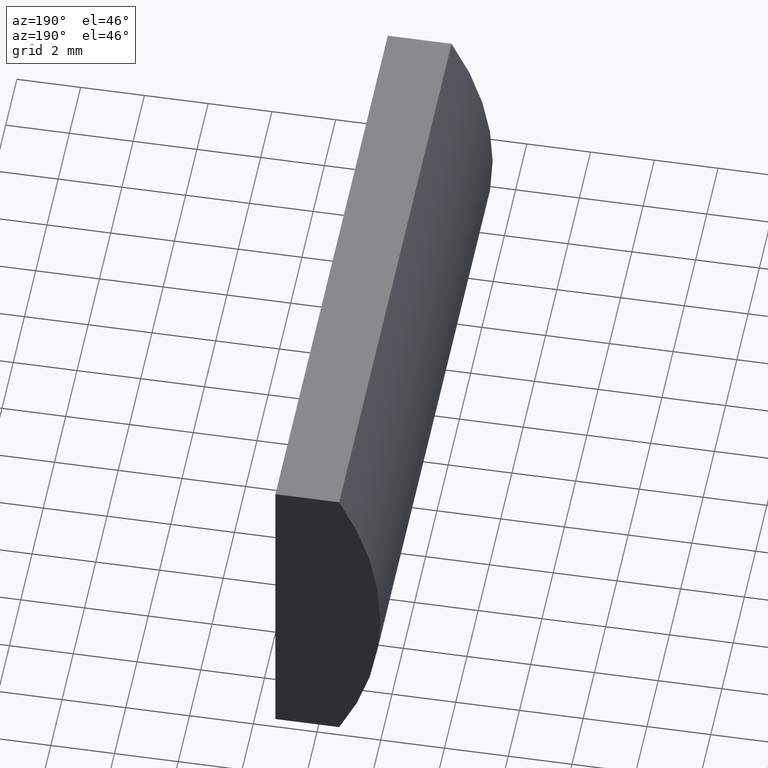
[diagram: clean part render]
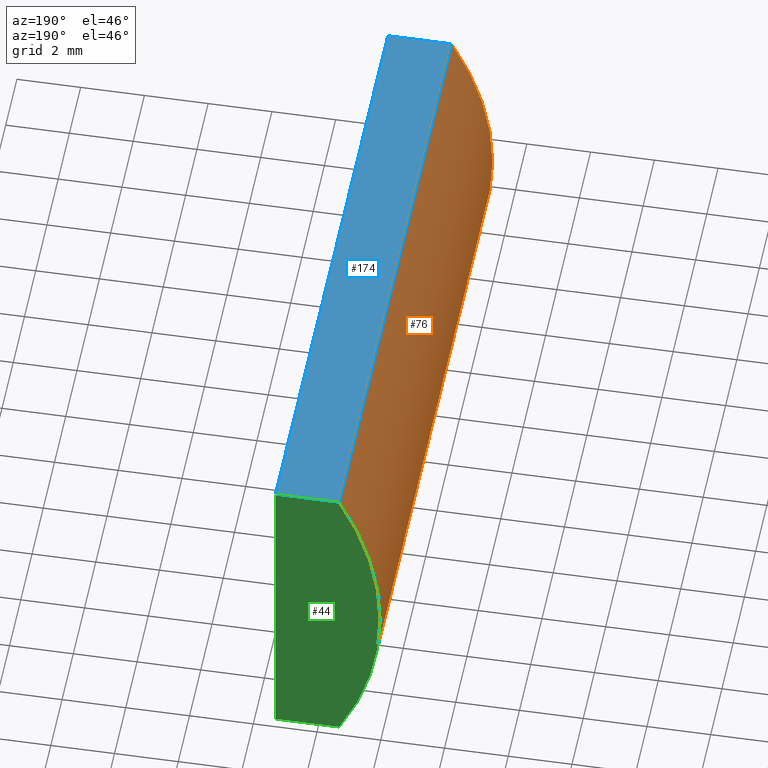
[diagram: same view with three faces highlighted in distinct colors, each labeled with its STEP entity id]
A machine part, auxiliary view with three faces highlighted in distinct colors.
Their STEP definitions:

[orange] entity #76 — the highlighted cylindrical surface (partial cylindrical patch) has radius 10.34 mm, axis along (-0, -1, -0).
#2 = FACE_OUTER_BOUND ( 'NONE', #109, .T. ) ;
#8 = VERTEX_POINT ( 'NONE', #71 ) ;
#13 = CARTESIAN_POINT ( 'NONE',  ( 4.355204334851265500, 0.0000000000000000000, 4.286263797015675000E-017 ) ) ;
#20 = CARTESIAN_POINT ( 'NONE',  ( -4.695519393116569500, 0.0000000000000000000, -5.000000000000000000 ) ) ;
#22 = VERTEX_POINT ( 'NONE', #65 ) ;
#38 = AXIS2_PLACEMENT_3D ( 'NONE', #13, #83, #178 ) ;
#40 = CARTESIAN_POINT ( 'NONE',  ( 4.355204334851265500, 20.00000000000000000, 4.286263797015675000E-017 ) ) ;
#52 = EDGE_CURVE ( 'NONE', #153, #8, #180, .T. ) ;
#55 = CIRCLE ( 'NONE', #38, 10.34000000000000000 ) ;
#65 = CARTESIAN_POINT ( 'NONE',  ( -4.695519393116569500, 20.00000000000000000, -5.000000000000000000 ) ) ;
#71 = CARTESIAN_POINT ( 'NONE',  ( -4.695519393116569500, 0.0000000000000000000, 5.000000000000000000 ) ) ;
#76 = ADVANCED_FACE ( 'NONE', ( #2 ), #185, .T. ) ;
#83 = DIRECTION ( 'NONE',  ( 0.0000000000000000000, 1.000000000000000000, 0.0000000000000000000 ) ) ;
#84 = ORIENTED_EDGE ( 'NONE', *, *, #115, .T. ) ;
#89 = ORIENTED_EDGE ( 'NONE', *, *, #135, .T. ) ;
#91 = CIRCLE ( 'NONE', #202, 10.34000000000000000 ) ;
#106 = VERTEX_POINT ( 'NONE', #20 ) ;
#107 = AXIS2_PLACEMENT_3D ( 'NONE', #40, #141, #126 ) ;
#109 = EDGE_LOOP ( 'NONE', ( #84, #176, #142, #89 ) ) ;
#113 = CARTESIAN_POINT ( 'NONE',  ( -4.695519393116569500, 20.00000000000000000, 5.000000000000000000 ) ) ;
#115 = EDGE_CURVE ( 'NONE', #106, #8, #55, .T. ) ;
#122 = DIRECTION ( 'NONE',  ( 0.0000000000000000000, 0.0000000000000000000, 1.000000000000000000 ) ) ;
#126 = DIRECTION ( 'NONE',  ( 0.0000000000000000000, 0.0000000000000000000, -1.000000000000000000 ) ) ;
#130 = CARTESIAN_POINT ( 'NONE',  ( -4.695519393116569500, 20.00000000000000000, 5.000000000000000000 ) ) ;
#135 = EDGE_CURVE ( 'NONE', #22, #106, #192, .T. ) ;
#136 = CARTESIAN_POINT ( 'NONE',  ( -4.695519393116569500, 20.00000000000000000, -5.000000000000000000 ) ) ;
#141 = DIRECTION ( 'NONE',  ( -0.0000000000000000000, -1.000000000000000000, -0.0000000000000000000 ) ) ;
#142 = ORIENTED_EDGE ( 'NONE', *, *, #147, .F. ) ;
#144 = CARTESIAN_POINT ( 'NONE',  ( 4.355204334851265500, 20.00000000000000000, 4.286263797015675000E-017 ) ) ;
#146 = DIRECTION ( 'NONE',  ( 0.0000000000000000000, 1.000000000000000000, 0.0000000000000000000 ) ) ;
#147 = EDGE_CURVE ( 'NONE', #22, #153, #91, .T. ) ;
#153 = VERTEX_POINT ( 'NONE', #130 ) ;
#161 = VECTOR ( 'NONE', #168, 1000.000000000000000 ) ;
#168 = DIRECTION ( 'NONE',  ( -0.0000000000000000000, -1.000000000000000000, -0.0000000000000000000 ) ) ;
#175 = VECTOR ( 'NONE', #183, 1000.000000000000000 ) ;
#176 = ORIENTED_EDGE ( 'NONE', *, *, #52, .F. ) ;
#178 = DIRECTION ( 'NONE',  ( 0.0000000000000000000, 0.0000000000000000000, 1.000000000000000000 ) ) ;
#180 = LINE ( 'NONE', #113, #161 ) ;
#183 = DIRECTION ( 'NONE',  ( -0.0000000000000000000, -1.000000000000000000, -0.0000000000000000000 ) ) ;
#185 = CYLINDRICAL_SURFACE ( 'NONE', #107, 10.34000000000000000 ) ;
#192 = LINE ( 'NONE', #136, #175 ) ;
#202 = AXIS2_PLACEMENT_3D ( 'NONE', #144, #146, #122 ) ;

[blue] entity #174 — the highlighted planar face has unit normal (0, 0, -1).
#8 = VERTEX_POINT ( 'NONE', #71 ) ;
#10 = VECTOR ( 'NONE', #160, 1000.000000000000000 ) ;
#14 = DIRECTION ( 'NONE',  ( -1.000000000000000000, 0.0000000000000000000, -0.0000000000000000000 ) ) ;
#15 = PLANE ( 'NONE',  #77 ) ;
#17 = EDGE_CURVE ( 'NONE', #127, #121, #94, .T. ) ;
#24 = EDGE_LOOP ( 'NONE', ( #140, #99, #59, #114 ) ) ;
#30 = CARTESIAN_POINT ( 'NONE',  ( -2.694795665148734400, 20.00000000000000000, 5.000000000000000000 ) ) ;
#34 = VECTOR ( 'NONE', #78, 1000.000000000000000 ) ;
#36 = CARTESIAN_POINT ( 'NONE',  ( -2.694795665148734400, 20.00000000000000000, 5.000000000000000000 ) ) ;
#52 = EDGE_CURVE ( 'NONE', #153, #8, #180, .T. ) ;
#57 = DIRECTION ( 'NONE',  ( 0.0000000000000000000, 0.0000000000000000000, -1.000000000000000000 ) ) ;
#59 = ORIENTED_EDGE ( 'NONE', *, *, #171, .F. ) ;
#66 = DIRECTION ( 'NONE',  ( 1.000000000000000000, 0.0000000000000000000, 0.0000000000000000000 ) ) ;
#71 = CARTESIAN_POINT ( 'NONE',  ( -4.695519393116569500, 0.0000000000000000000, 5.000000000000000000 ) ) ;
#74 = FACE_OUTER_BOUND ( 'NONE', #24, .T. ) ;
#77 = AXIS2_PLACEMENT_3D ( 'NONE', #200, #57, #14 ) ;
#78 = DIRECTION ( 'NONE',  ( -0.0000000000000000000, -1.000000000000000000, -0.0000000000000000000 ) ) ;
#94 = LINE ( 'NONE', #36, #34 ) ;
#97 = EDGE_CURVE ( 'NONE', #8, #121, #117, .T. ) ;
#99 = ORIENTED_EDGE ( 'NONE', *, *, #17, .F. ) ;
#100 = VECTOR ( 'NONE', #66, 1000.000000000000000 ) ;
#108 = CARTESIAN_POINT ( 'NONE',  ( -2.694795665148734400, 0.0000000000000000000, 5.000000000000000000 ) ) ;
#113 = CARTESIAN_POINT ( 'NONE',  ( -4.695519393116569500, 20.00000000000000000, 5.000000000000000000 ) ) ;
#114 = ORIENTED_EDGE ( 'NONE', *, *, #52, .T. ) ;
#117 = LINE ( 'NONE', #119, #100 ) ;
#119 = CARTESIAN_POINT ( 'NONE',  ( -4.695519393116569500, 0.0000000000000000000, 5.000000000000000000 ) ) ;
#121 = VERTEX_POINT ( 'NONE', #108 ) ;
#127 = VERTEX_POINT ( 'NONE', #30 ) ;
#130 = CARTESIAN_POINT ( 'NONE',  ( -4.695519393116569500, 20.00000000000000000, 5.000000000000000000 ) ) ;
#140 = ORIENTED_EDGE ( 'NONE', *, *, #97, .T. ) ;
#153 = VERTEX_POINT ( 'NONE', #130 ) ;
#157 = CARTESIAN_POINT ( 'NONE',  ( -4.695519393116569500, 20.00000000000000000, 5.000000000000000000 ) ) ;
#160 = DIRECTION ( 'NONE',  ( 1.000000000000000000, 0.0000000000000000000, 0.0000000000000000000 ) ) ;
#161 = VECTOR ( 'NONE', #168, 1000.000000000000000 ) ;
#168 = DIRECTION ( 'NONE',  ( -0.0000000000000000000, -1.000000000000000000, -0.0000000000000000000 ) ) ;
#171 = EDGE_CURVE ( 'NONE', #153, #127, #199, .T. ) ;
#174 = ADVANCED_FACE ( 'NONE', ( #74 ), #15, .F. ) ;
#180 = LINE ( 'NONE', #113, #161 ) ;
#199 = LINE ( 'NONE', #157, #10 ) ;
#200 = CARTESIAN_POINT ( 'NONE',  ( -4.695519393116569500, 20.00000000000000000, 5.000000000000000000 ) ) ;

[green] entity #44 — the highlighted planar face has unit normal (0, 1, 0).
#4 = DIRECTION ( 'NONE',  ( 0.0000000000000000000, -0.0000000000000000000, 1.000000000000000000 ) ) ;
#6 = EDGE_LOOP ( 'NONE', ( #198, #196, #116, #80 ) ) ;
#10 = VECTOR ( 'NONE', #160, 1000.000000000000000 ) ;
#18 = CARTESIAN_POINT ( 'NONE',  ( -2.694795665148737900, 20.00000000000000000, -5.000000000000000000 ) ) ;
#22 = VERTEX_POINT ( 'NONE', #65 ) ;
#27 = VECTOR ( 'NONE', #29, 1000.000000000000000 ) ;
#29 = DIRECTION ( 'NONE',  ( -3.469446951953614200E-016, -0.0000000000000000000, -1.000000000000000000 ) ) ;
#30 = CARTESIAN_POINT ( 'NONE',  ( -2.694795665148734400, 20.00000000000000000, 5.000000000000000000 ) ) ;
#32 = PLANE ( 'NONE',  #87 ) ;
#37 = VERTEX_POINT ( 'NONE', #67 ) ;
#44 = ADVANCED_FACE ( 'NONE', ( #139 ), #32, .T. ) ;
#50 = CARTESIAN_POINT ( 'NONE',  ( 4.355204334851265500, 20.00000000000000000, 4.286263797015675000E-017 ) ) ;
#61 = DIRECTION ( 'NONE',  ( -1.000000000000000000, -0.0000000000000000000, -0.0000000000000000000 ) ) ;
#65 = CARTESIAN_POINT ( 'NONE',  ( -4.695519393116569500, 20.00000000000000000, -5.000000000000000000 ) ) ;
#67 = CARTESIAN_POINT ( 'NONE',  ( -2.694795665148737900, 20.00000000000000000, -5.000000000000000000 ) ) ;
#80 = ORIENTED_EDGE ( 'NONE', *, *, #85, .T. ) ;
#85 = EDGE_CURVE ( 'NONE', #37, #22, #154, .T. ) ;
#87 = AXIS2_PLACEMENT_3D ( 'NONE', #50, #150, #4 ) ;
#91 = CIRCLE ( 'NONE', #202, 10.34000000000000000 ) ;
#105 = VECTOR ( 'NONE', #61, 1000.000000000000000 ) ;
#116 = ORIENTED_EDGE ( 'NONE', *, *, #164, .T. ) ;
#122 = DIRECTION ( 'NONE',  ( 0.0000000000000000000, 0.0000000000000000000, 1.000000000000000000 ) ) ;
#125 = LINE ( 'NONE', #18, #27 ) ;
#127 = VERTEX_POINT ( 'NONE', #30 ) ;
#130 = CARTESIAN_POINT ( 'NONE',  ( -4.695519393116569500, 20.00000000000000000, 5.000000000000000000 ) ) ;
#139 = FACE_OUTER_BOUND ( 'NONE', #6, .T. ) ;
#144 = CARTESIAN_POINT ( 'NONE',  ( 4.355204334851265500, 20.00000000000000000, 4.286263797015675000E-017 ) ) ;
#146 = DIRECTION ( 'NONE',  ( 0.0000000000000000000, 1.000000000000000000, 0.0000000000000000000 ) ) ;
#147 = EDGE_CURVE ( 'NONE', #22, #153, #91, .T. ) ;
#150 = DIRECTION ( 'NONE',  ( 0.0000000000000000000, 1.000000000000000000, 0.0000000000000000000 ) ) ;
#153 = VERTEX_POINT ( 'NONE', #130 ) ;
#154 = LINE ( 'NONE', #197, #105 ) ;
#157 = CARTESIAN_POINT ( 'NONE',  ( -4.695519393116569500, 20.00000000000000000, 5.000000000000000000 ) ) ;
#160 = DIRECTION ( 'NONE',  ( 1.000000000000000000, 0.0000000000000000000, 0.0000000000000000000 ) ) ;
#164 = EDGE_CURVE ( 'NONE', #127, #37, #125, .T. ) ;
#171 = EDGE_CURVE ( 'NONE', #153, #127, #199, .T. ) ;
#196 = ORIENTED_EDGE ( 'NONE', *, *, #171, .T. ) ;
#197 = CARTESIAN_POINT ( 'NONE',  ( -4.695519393116569500, 20.00000000000000000, -5.000000000000000000 ) ) ;
#198 = ORIENTED_EDGE ( 'NONE', *, *, #147, .T. ) ;
#199 = LINE ( 'NONE', #157, #10 ) ;
#202 = AXIS2_PLACEMENT_3D ( 'NONE', #144, #146, #122 ) ;